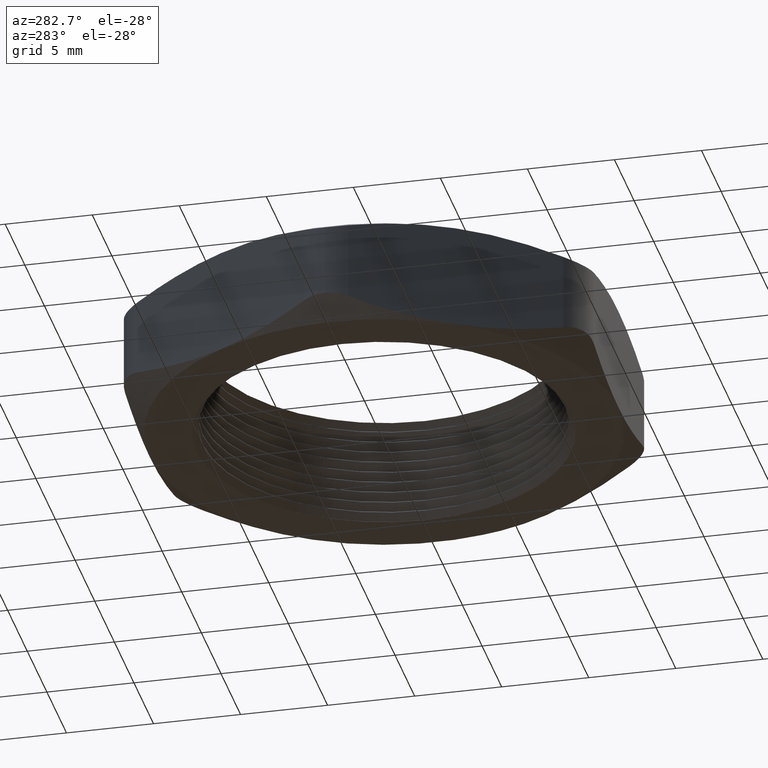
[diagram: clean part render]
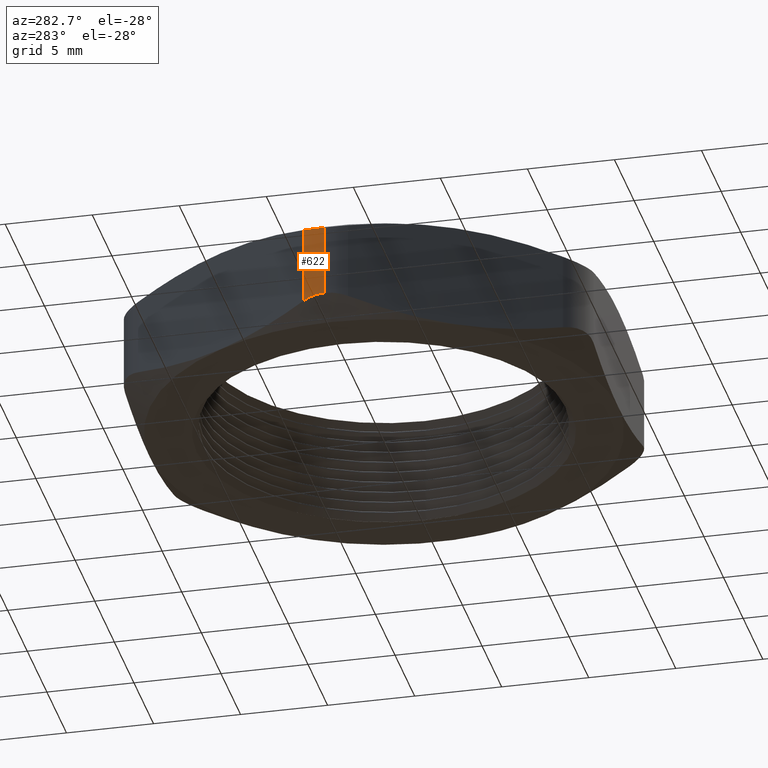
[diagram: same view with one face highlighted and labeled with its STEP entity id]
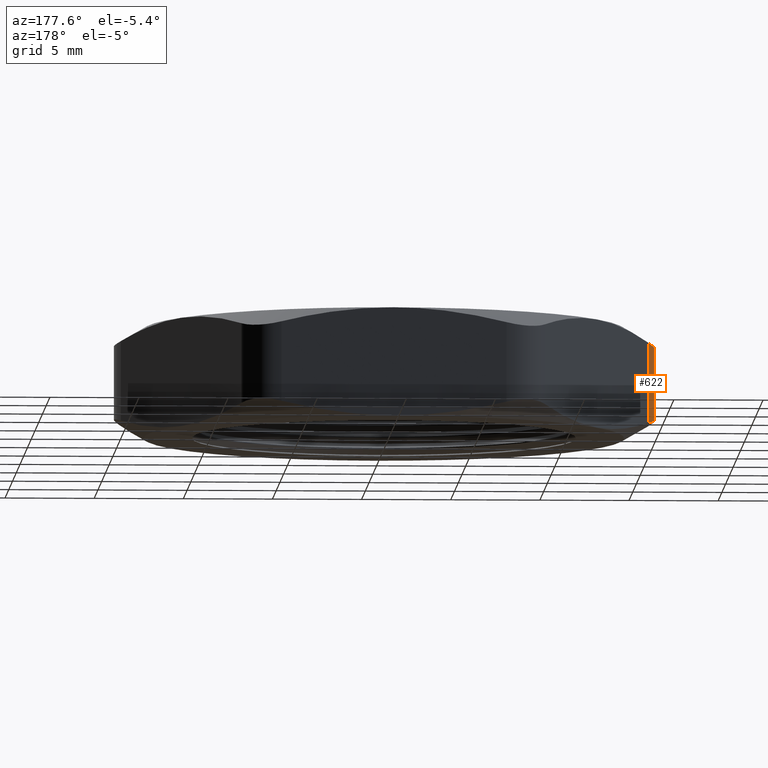
[diagram: same view with one face highlighted and labeled with its STEP entity id]
A machine part, auxiliary view. The second image highlights one B-rep face of the part: STEP entity #622.
A second angle (auxiliary view) of the same face is appended — the face is thin or edge-on in the first view.
In plain terms, the highlighted cylindrical surface (partial cylindrical patch) has radius 2.54 mm, axis along (0, 0, -1).
Its self-contained STEP definition (entity closure, byte-faithful):
#158 = EDGE_CURVE ( 'NONE', #238, #159, #1137, .T. ) ;
#159 = VERTEX_POINT ( 'NONE', #1133 ) ;
#174 = EDGE_CURVE ( 'NONE', #159, #175, #1158, .T. ) ;
#175 = VERTEX_POINT ( 'NONE', #1157 ) ;
#238 = VERTEX_POINT ( 'NONE', #1268 ) ;
#388 = VERTEX_POINT ( 'NONE', #1578 ) ;
#390 = EDGE_CURVE ( 'NONE', #175, #388, #1577, .T. ) ;
#527 = EDGE_CURVE ( 'NONE', #388, #238, #1916, .T. ) ;
#601 = ORIENTED_EDGE ( 'NONE', *, *, #527, .F. ) ;
#602 = ORIENTED_EDGE ( 'NONE', *, *, #390, .F. ) ;
#603 = ORIENTED_EDGE ( 'NONE', *, *, #174, .F. ) ;
#622 = ADVANCED_FACE ( 'NONE', ( #2100 ), #2099, .T. ) ;
#623 = EDGE_LOOP ( 'NONE', ( #624, #601, #602, #603 ) ) ;
#624 = ORIENTED_EDGE ( 'NONE', *, *, #158, .F. ) ;
#1133 = CARTESIAN_POINT ( 'NONE',  ( -0.5965212315030782300, -3.403593173353176800E-025, 0.03840605091512735300 ) ) ;
#1134 = DIRECTION ( 'NONE',  ( 0.0000000000000000000, 0.0000000000000000000, -1.000000000000000000 ) ) ;
#1135 = VECTOR ( 'NONE', #1134, 39.37007874015748100 ) ;
#1136 = CARTESIAN_POINT ( 'NONE',  ( -0.5965212315030782300, 2.475737244258238600E-016, 0.2399999999999999900 ) ) ;
#1137 = LINE ( 'NONE', #1136, #1135 ) ;
#1151 = CARTESIAN_POINT ( 'NONE',  ( -0.5831237718815220900, 0.05000000000000028000, 0.03190638126214311000 ) ) ;
#1152 = CARTESIAN_POINT ( 'NONE',  ( -0.5874339482388027900, 0.04253455555960886800, 0.03401753964666050200 ) ) ;
#1153 = CARTESIAN_POINT ( 'NONE',  ( -0.5908131712624052900, 0.03441686282104238600, 0.03565369559001655600 ) ) ;
#1154 = CARTESIAN_POINT ( 'NONE',  ( -0.5953360325567611500, 0.01763874833257982100, 0.03783774930936030500 ) ) ;
#1155 = CARTESIAN_POINT ( 'NONE',  ( -0.5965212315030781200, 0.008765464616512159600, 0.03840605091512736700 ) ) ;
#1156 = CARTESIAN_POINT ( 'NONE',  ( -0.5965212315030782300, -3.403593173353176800E-025, 0.03840605091512735300 ) ) ;
#1157 = CARTESIAN_POINT ( 'NONE',  ( -0.5831237718815220900, 0.05000000000000028000, 0.03190638126214311000 ) ) ;
#1158 = B_SPLINE_CURVE_WITH_KNOTS ( 'NONE', 3,
 ( #1156, #1155, #1154, #1153, #1152, #1151 ),
 .UNSPECIFIED., .F., .F.,
 ( 4, 2, 4 ),
 ( 0.001338114895954692900, 0.002005113312624130300, 0.002672111729293567800 ),
 .UNSPECIFIED. ) ;
#1268 = CARTESIAN_POINT ( 'NONE',  ( -0.5965212315030782300, 2.475737247661909100E-016, 0.2015939490848726600 ) ) ;
#1574 = DIRECTION ( 'NONE',  ( 0.0000000000000000000, 0.0000000000000000000, 1.000000000000000000 ) ) ;
#1575 = VECTOR ( 'NONE', #1574, 39.37007874015748100 ) ;
#1576 = CARTESIAN_POINT ( 'NONE',  ( -0.5831237718815222000, 0.05000000000000014800, 0.2399999999999999900 ) ) ;
#1577 = LINE ( 'NONE', #1576, #1575 ) ;
#1578 = CARTESIAN_POINT ( 'NONE',  ( -0.5831237718815220900, 0.05000000000000026000, 0.2080936187378568700 ) ) ;
#1906 = CARTESIAN_POINT ( 'NONE',  ( -0.5965212315030782300, 2.475737247661909100E-016, 0.2015939490848726600 ) ) ;
#1907 = CARTESIAN_POINT ( 'NONE',  ( -0.5965212315030782300, 0.008792523700346398900, 0.2015939490848726300 ) ) ;
#1908 = CARTESIAN_POINT ( 'NONE',  ( -0.5953478593261331000, 0.01761277402300922800, 0.2021565181018570600 ) ) ;
#1909 = CARTESIAN_POINT ( 'NONE',  ( -0.5907735808882251800, 0.03454572058942180500, 0.2043654439536534700 ) ) ;
#1910 = CARTESIAN_POINT ( 'NONE',  ( -0.5874461532471804100, 0.04251341586499088300, 0.2059764822439457100 ) ) ;
#1911 = CARTESIAN_POINT ( 'NONE',  ( -0.5831237718815220900, 0.05000000000000026000, 0.2080936187378568700 ) ) ;
#1916 = B_SPLINE_CURVE_WITH_KNOTS ( 'NONE', 3,
 ( #1911, #1910, #1909, #1908, #1907, #1906 ),
 .UNSPECIFIED., .F., .F.,
 ( 4, 2, 4 ),
 ( 2.168404344971008900E-019, 0.0006690574479773502300, 0.001338114895954700200 ),
 .UNSPECIFIED. ) ;
#2095 = DIRECTION ( 'NONE',  ( -1.000000000000000000, 0.0000000000000000000, 0.0000000000000000000 ) ) ;
#2096 = DIRECTION ( 'NONE',  ( 0.0000000000000000000, 0.0000000000000000000, -1.000000000000000000 ) ) ;
#2097 = AXIS2_PLACEMENT_3D ( 'NONE', #2105, #2096, #2095 ) ;
#2099 = CYLINDRICAL_SURFACE ( 'NONE', #2097, 0.1000000000000000200 ) ;
#2100 = FACE_OUTER_BOUND ( 'NONE', #623, .T. ) ;
#2105 = CARTESIAN_POINT ( 'NONE',  ( -0.4965212315030782500, 2.475737244258238600E-016, 0.2399999999999999900 ) ) ;